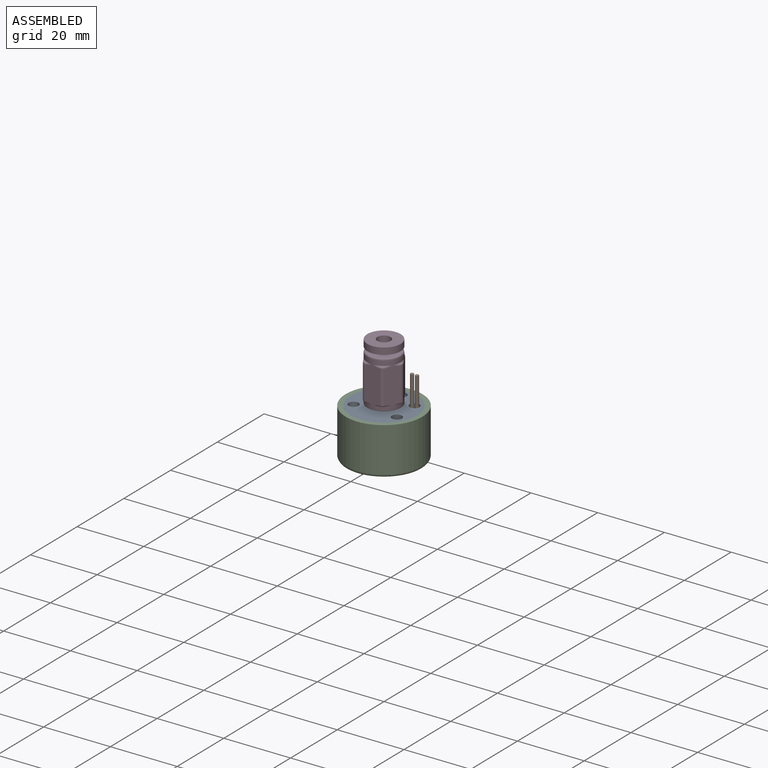
[diagram: assembled view]
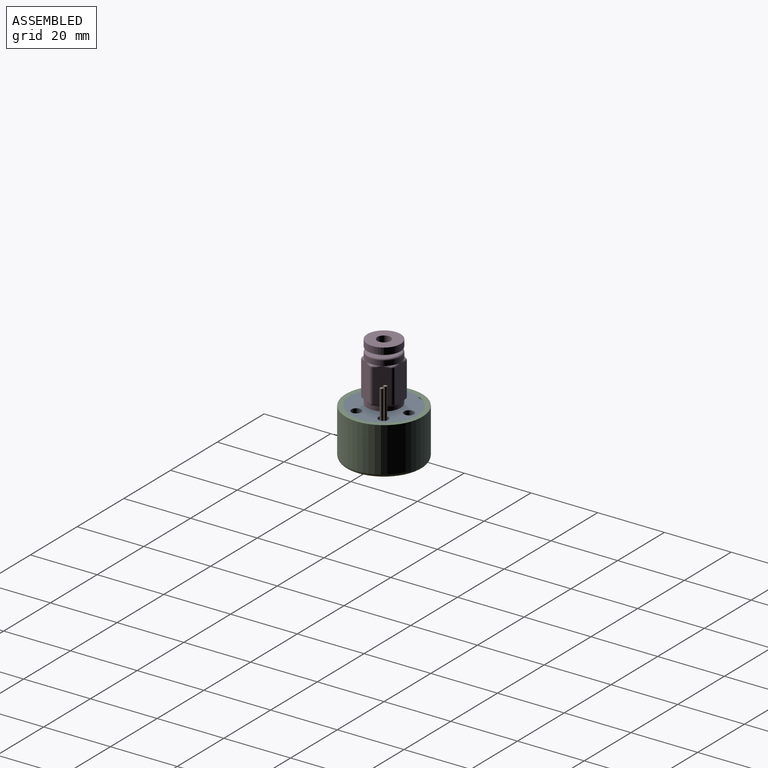
[diagram: assembled view, second angle]
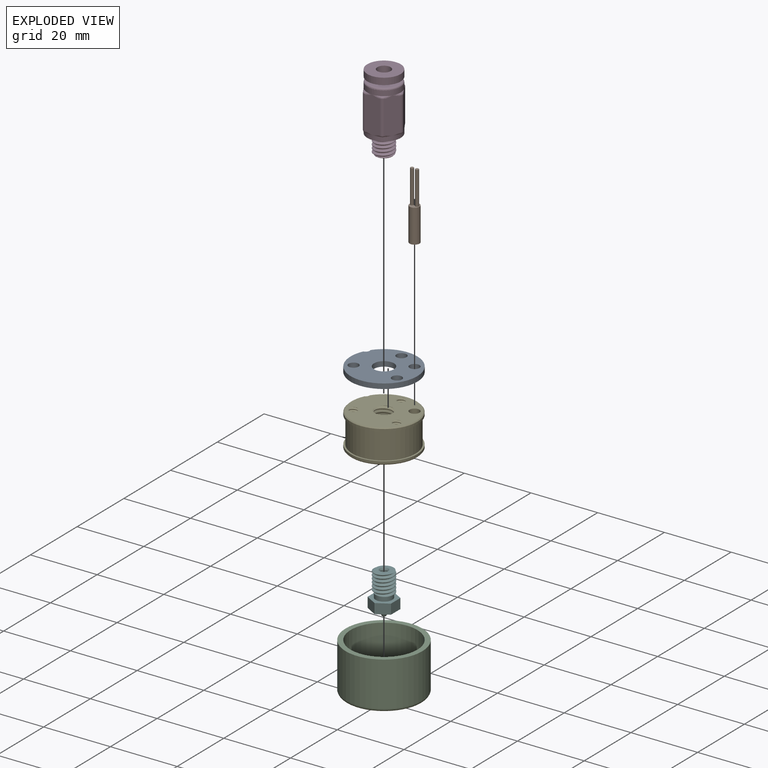
[diagram: exploded view]
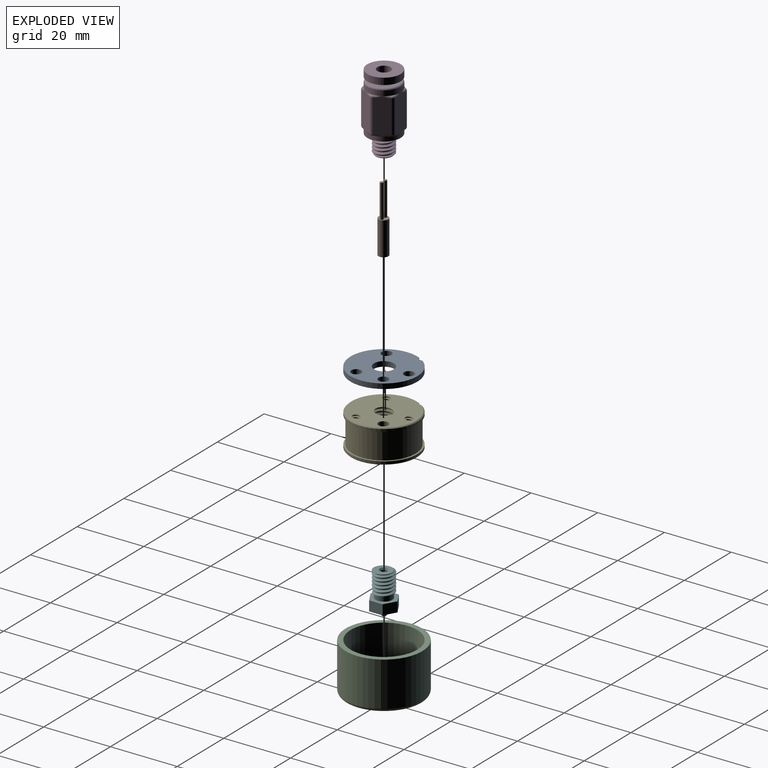
[diagram: exploded view, second angle]
ASSEMBLY  parts=6 mates=5
PART A: 9 faces, bbox 20x20x1.5 mm
  f0: cylinder r=1.25mm len=1.67mm, axis (0,0,-1), area 3.3mm2, adj f6,f7,f8
  f1: cylinder r=3mm len=6mm, axis (0,0,-1), area 28.3mm2, adj f7,f8
  f2: cylinder r=1.5mm len=3mm, axis (0,0,-1), area 14.1mm2, adj f7,f8
  f3: cylinder r=1.5mm len=3mm, axis (0,0,-1), area 14.1mm2, adj f7,f8
  f4: cylinder r=1.5mm len=3mm, axis (0,0,-1), area 14.1mm2, adj f7,f8
  f5: cylinder r=1.5mm len=3mm, axis (0,0,-1), area 14.1mm2, adj f7,f8
  f6: cylinder r=10mm len=20mm, axis (0,0,-1), area 91.4mm2, adj f0,f7,f8
  f7: plane 20x20mm, normal (0,0,1), area 256.9mm2, adj f0,f1,f2,f3,f4,f5,f6
  f8: plane 20x20mm, normal (0,0,-1), area 256.9mm2, adj f0,f1,f2,f3,f4,f5,f6
PART B: 7 faces, bbox 3x3x20 mm
  f0: cylinder r=1.5mm len=10mm, axis (0,0,-1), area 94.2mm2, adj f1,f2
  f1: plane 3x3mm, normal (0,0,1), area 5.5mm2, adj f0,f3,f5
  f2: plane 3x3mm, normal (0,0,-1), area 7.1mm2, adj f0
  f3: cylinder r=0.5mm len=10mm, axis (0,0,-1), area 31.4mm2, adj f1,f4
  f4: plane 1x1mm, normal (0,0,1), area 0.8mm2, adj f3
  f5: cylinder r=0.5mm len=10mm, axis (0,0,-1), area 31.4mm2, adj f1,f6
  f6: plane 1x1mm, normal (0,0,1), area 0.8mm2, adj f5
PART C: 7 faces, bbox 24.9x24.9x16 mm
  f0: plane 23x23mm, normal (0,0,1), area 101.3mm2, adj f1,f5
  f1: cylinder r=11.5mm len=23mm, axis (0,0,1), area 961mm2, adj f0,f6
  f2: cone r=11.5mm half-angle=70deg, axis (0,0,1), area 272.6mm2, adj f3,f6
  f3: cylinder r=6mm len=12mm, axis (0,0,1), area 169.6mm2, adj f2,f4
  f4: plane 20x20mm, normal (0,0,1), area 201.1mm2, adj f3,f5
  f5: cylinder r=10mm len=20mm, axis (0,0,1), area 722.6mm2, adj f0,f4
  f6: torus R=10.5mm, axis (0,0,-1), area 86.5mm2, adj f1,f2
PART D: 110 faces, bbox 11.8x11.2x23.8 mm
  f0: plane 5.5x5.5mm, normal (0,0,1), area 4.1mm2, adj f1,f109
  f1: cylinder r=2.75mm len=5.5mm, axis (0,0,-1), area 34.6mm2, adj f0,f2
  f2: plane 9x9mm, normal (0,0,1), area 39.9mm2, adj f1,f3
  f3: torus R=4.5mm, axis (0,0,1), area 23.8mm2, adj f2,f4
  f4: cylinder r=5mm len=10mm, axis (0,0,-1), area 47.1mm2, adj f3,f5,f90,f91,f92,f93,f94,f95
  f5: plane 0.73x0.13mm, normal (0,0,1), area 0.1mm2, adj f4,f6,f88,f89
  f6: cylinder r=0.5mm len=0.5mm, axis (-0.5,0.87,0), area 0.1mm2, adj f5,f7,f88,f108
  f7: plane 11.38x4.38mm, normal (-0.87,-0.5,0), area 47.9mm2, adj f6,f8,f81,f82,f83,f84,f85,f86
  f8: cylinder r=0.5mm len=0.5mm, axis (-0.5,0.87,0), area 0.1mm2, adj f7,f9,f106,f107
  f9: torus R=0.5mm, axis (0,0,1), area 0.7mm2, adj f8,f10,f81,f106
  f10: cylinder r=0.5mm len=0.5mm, axis (-1,0,0), area 0.1mm2, adj f9,f11,f105,f106
  f11: plane 11x4.62mm, normal (0,-1,0), area 47.9mm2, adj f10,f12,f76,f77,f78,f79,f80,f81
  f12: cylinder r=0.5mm len=0.5mm, axis (-1,0,0), area 0.1mm2, adj f11,f13,f103,f104
  f13: torus R=0.5mm, axis (0,0,1), area 0.7mm2, adj f12,f14,f76,f103
  f14: cylinder r=0.5mm len=0.5mm, axis (-0.5,-0.87,0), area 0.1mm2, adj f13,f15,f101,f103
  f15: plane 11.38x4.38mm, normal (0.87,-0.5,0), area 47.9mm2, adj f14,f16,f70,f71,f72,f73,f74,f75
  f16: bspline ~1.69x1.45mm, area 0.3mm2, adj f15,f17,f71
  f17: cylinder r=5mm len=10mm, axis (0,0,1), area 40.8mm2, adj f16,f18,f42,f43,f44,f45,f46,f47
  f18: plane 0.73x0.13mm, normal (0,0,-1), area 0.1mm2, adj f17,f19,f20,f74
  f19: torus R=0.5mm, axis (0,0,1), area 0.7mm2, adj f18,f20,f73,f74
  f20: cylinder r=0.5mm len=0.5mm, axis (-0.5,0.87,0), area 0.1mm2, adj f18,f19,f21,f43
  f21: plane 11.38x4.38mm, normal (0.87,0.5,0), area 47.9mm2, adj f20,f22,f24,f40,f41,f42,f43,f44
  f22: cylinder r=0.5mm len=0.5mm, axis (0.5,-0.87,0), area 0.1mm2, adj f21,f23,f98,f99
  f23: torus R=0.5mm, axis (0,0,1), area 0.7mm2, adj f22,f72,f73,f99
  f24: cylinder r=0.5mm len=0.5mm, axis (0.5,-0.87,0), area 0.1mm2, adj f21,f25,f96,f97
  f25: torus R=0.5mm, axis (0,0,1), area 0.7mm2, adj f24,f26,f40,f96
  f26: cylinder r=0.5mm len=0.5mm, axis (1,0,0), area 0.1mm2, adj f25,f27,f95,f96
  f27: plane 11x4.62mm, normal (0,1,0), area 47.9mm2, adj f26,f28,f30,f38,f39,f40,f46,f47
  f28: cylinder r=0.5mm len=0.5mm, axis (-1,0,0), area 0.1mm2, adj f27,f29,f45,f46
  f29: torus R=0.5mm, axis (0,0,1), area 0.7mm2, adj f28,f40,f41,f45
  f30: cylinder r=0.5mm len=0.5mm, axis (1,0,0), area 0.1mm2, adj f27,f31,f93,f94
  f31: torus R=0.5mm, axis (0,0,1), area 0.7mm2, adj f30,f32,f38,f93
  f32: cylinder r=0.5mm len=0.5mm, axis (0.5,0.87,0), area 0.1mm2, adj f31,f33,f91,f93
  f33: plane 11.38x4.38mm, normal (-0.87,0.5,0), area 47.9mm2, adj f32,f34,f36,f38,f49,f50,f51,f87
  f34: cylinder r=0.5mm len=0.5mm, axis (-0.5,-0.87,0), area 0.1mm2, adj f33,f35,f51,f52
  f35: torus R=0.5mm, axis (0,0,1), area 0.7mm2, adj f34,f52,f86,f87
  f36: cylinder r=0.5mm len=0.5mm, axis (-0.5,-0.87,0), area 0.1mm2, adj f33,f37,f48,f50
  f37: torus R=0.5mm, axis (0,0,1), area 0.7mm2, adj f36,f38,f39,f48
  f38: cylinder r=1mm len=10mm, axis (0,0,-1), area 10.5mm2, adj f27,f31,f33,f37
  f39: cylinder r=0.5mm len=0.5mm, axis (-1,0,0), area 0.1mm2, adj f27,f37,f47,f48
  f40: cylinder r=1mm len=10mm, axis (0,0,-1), area 10.5mm2, adj f21,f25,f27,f29
  f41: cylinder r=0.5mm len=0.5mm, axis (-0.5,0.87,0), area 0.1mm2, adj f21,f29,f44,f45
  f42: bspline ~1.34x0.7mm, area 0.1mm2, adj f17,f21
  f43: bspline ~1.94x0.97mm, area 0.3mm2, adj f17,f20,f21
  f44: bspline ~2.07x1.68mm, area 0.5mm2, adj f17,f21,f41
  f45: plane 0.63x0.36mm, normal (0,0,-1), area 0.1mm2, adj f17,f28,f29,f41
  f46: bspline ~2.23x0.53mm, area 0.5mm2, adj f17,f27,f28
  f47: bspline ~2.39x0.59mm, area 0.5mm2, adj f17,f27,f39
  f48: plane 0.63x0.36mm, normal (0,0,-1), area 0.1mm2, adj f17,f36,f37,f39
  f49: bspline ~1.21x0.9mm, area 0.1mm2, adj f17,f33
  f50: bspline ~1.69x1.45mm, area 0.3mm2, adj f17,f33,f36
  f51: bspline ~2.32x1.2mm, area 0.5mm2, adj f17,f33,f34
  f52: plane 0.73x0.13mm, normal (0,0,-1), area 0.1mm2, adj f17,f34,f35,f86
  f53: plane 0.63x0.36mm, normal (0,0,-1), area 0.1mm2, adj f17,f54,f80,f82
  f54: torus R=0.5mm, axis (0,0,1), area 0.7mm2, adj f53,f80,f81,f82
  f55: plane 0.63x0.36mm, normal (0,0,-1), area 0.1mm2, adj f17,f56,f71,f77
  f56: torus R=0.5mm, axis (0,0,1), area 0.7mm2, adj f55,f71,f76,f77
  f57: plane 10x10mm, normal (0,0,-1), area 21.8mm2, adj f17,f58
  f58: cylinder r=4.25mm len=8.5mm, axis (0,0,1), area 34.7mm2, adj f57,f59
  f59: plane 8.78x8.78mm, normal (0,0,-1), area 33.9mm2, adj f58,f60,f67,f68,f69
  f60: bspline ~7.81x6.93mm, area 72.6mm2, adj f59,f61,f66,f67,f69
  f61: plane 5.03x4.95mm, normal (0,0,-1), area 6.7mm2, adj f60,f62,f66,f67,f68
  f62: cylinder r=2mm len=23mm, axis (0,0,-1), area 289mm2, adj f61,f63
  f63: plane 10x10mm, normal (0,0,1), area 66mm2, adj f62,f64
  f64: cylinder r=5mm len=10mm, axis (0,0,-1), area 62.8mm2, adj f63,f65
  f65: plane 10x10mm, normal (0,0,-1), area 58.9mm2, adj f64,f109
  f66: cone r=2.5mm half-angle=45deg, axis (0,0,1), area 4.9mm2, adj f60,f61,f68,f69
  f67: bspline ~7.75x5.68mm, area 29.9mm2, adj f59,f60,f61,f68
  f68: bspline ~7.48x6.93mm, area 72.5mm2, adj f59,f61,f66,f67,f69
  f69: cylinder r=3mm len=6.5mm, axis (0,0,1), area 21.2mm2, adj f59,f60,f66,f68
  f70: bspline ~1.21x0.9mm, area 0.1mm2, adj f15,f17
  f71: cylinder r=0.5mm len=0.5mm, axis (0.5,0.87,0), area 0.1mm2, adj f15,f16,f55,f56
  f72: cylinder r=0.5mm len=0.5mm, axis (-0.5,-0.87,0), area 0.1mm2, adj f15,f23,f99,f100
  f73: cylinder r=1mm len=10mm, axis (0,0,-1), area 10.5mm2, adj f15,f19,f21,f23
  f74: cylinder r=0.5mm len=0.5mm, axis (0.5,0.87,0), area 0.1mm2, adj f15,f18,f19,f75
  f75: bspline ~2.32x1.2mm, area 0.5mm2, adj f15,f17,f74
  f76: cylinder r=1mm len=10mm, axis (0,0,-1), area 10.5mm2, adj f11,f13,f15,f56
  f77: cylinder r=0.5mm len=0.5mm, axis (1,0,0), area 0.1mm2, adj f11,f55,f56,f78
  f78: bspline ~2.39x0.59mm, area 0.5mm2, adj f11,f17,f77
  f79: bspline ~2.23x0.53mm, area 0.5mm2, adj f11,f17,f80
  f80: cylinder r=0.5mm len=0.5mm, axis (1,0,0), area 0.1mm2, adj f11,f53,f54,f79
  f81: cylinder r=1mm len=10mm, axis (0,0,-1), area 10.5mm2, adj f7,f9,f11,f54
  f82: cylinder r=0.5mm len=0.5mm, axis (0.5,-0.87,0), area 0.1mm2, adj f7,f53,f54,f83
  f83: bspline ~2.07x1.68mm, area 0.5mm2, adj f7,f17,f82
  f84: bspline ~1.94x0.97mm, area 0.3mm2, adj f7,f17,f86
  f85: bspline ~1.34x0.7mm, area 0.1mm2, adj f7,f17
  f86: cylinder r=0.5mm len=0.5mm, axis (0.5,-0.87,0), area 0.1mm2, adj f7,f35,f52,f84
  f87: cylinder r=1mm len=10mm, axis (0,0,-1), area 10.5mm2, adj f7,f33,f35,f88
  f88: torus R=0.5mm, axis (0,0,1), area 0.7mm2, adj f5,f6,f87,f89
  f89: cylinder r=0.5mm len=0.5mm, axis (0.5,0.87,0), area 0.1mm2, adj f5,f33,f88,f90
  f90: bspline ~2.32x1.2mm, area 0.5mm2, adj f4,f33,f89
  f91: bspline ~1.69x1.45mm, area 0.3mm2, adj f4,f32,f33
  f92: bspline ~1.21x0.9mm, area 0.1mm2, adj f4,f33
  f93: plane 0.63x0.36mm, normal (0,0,1), area 0.1mm2, adj f4,f30,f31,f32
  f94: bspline ~2.23x0.53mm, area 0.5mm2, adj f4,f27,f30
  f95: bspline ~2.39x0.59mm, area 0.5mm2, adj f4,f26,f27
  f96: plane 0.63x0.36mm, normal (0,0,1), area 0.1mm2, adj f4,f24,f25,f26
  f97: bspline ~2.07x1.68mm, area 0.5mm2, adj f4,f21,f24
  f98: bspline ~2.14x1.09mm, area 0.8mm2, adj f4,f21,f22
  f99: plane 0.73x0.13mm, normal (0,0,1), area 0.1mm2, adj f4,f22,f23,f72
  f100: bspline ~2.32x1.2mm, area 0.5mm2, adj f4,f15,f72
  f101: bspline ~1.69x1.45mm, area 0.3mm2, adj f4,f14,f15
  f102: bspline ~1.21x0.9mm, area 0.1mm2, adj f4,f15
  f103: plane 0.63x0.36mm, normal (0,0,1), area 0.1mm2, adj f4,f12,f13,f14
  f104: bspline ~2.23x0.53mm, area 0.5mm2, adj f4,f11,f12
  f105: bspline ~2.39x0.59mm, area 0.5mm2, adj f4,f10,f11
  f106: plane 0.63x0.36mm, normal (0,0,1), area 0.1mm2, adj f4,f8,f9,f10
  f107: bspline ~2.07x1.68mm, area 0.5mm2, adj f4,f7,f8
  f108: bspline ~2.14x1.09mm, area 0.8mm2, adj f4,f6,f7
  f109: cylinder r=2.5mm len=5mm, axis (0,0,-1), area 47.1mm2, adj f0,f65
PART E: 28 faces, bbox 20.3x20.3x11.1 mm
  f0: plane 19.79x19.79mm, normal (0,0,-1), area 251.1mm2, adj f3,f9,f11,f12,f13,f14,f15,f16
  f1: plane 19.79x19.79mm, normal (0,0,1), area 251.1mm2, adj f2,f9,f10,f12,f13,f14,f15,f16
  f2: cylinder r=1.25mm len=1.67mm, axis (0,0,1), area 2.1mm2, adj f1,f5,f6,f10
  f3: cylinder r=1.25mm len=1.67mm, axis (0,0,1), area 2.1mm2, adj f0,f4,f7,f11
  f4: cylinder r=10mm len=20mm, axis (0,0,1), area 45.7mm2, adj f3,f7,f11
  f5: cylinder r=10mm len=20mm, axis (0,0,1), area 45.7mm2, adj f2,f6,f10
  f6: plane 20x20mm, normal (0,0,-1), area 30mm2, adj f2,f5,f8
  f7: plane 20x20mm, normal (0,0,1), area 30mm2, adj f3,f4,f8
  f8: cylinder r=9.5mm len=19mm, axis (0,0,-1), area 477.5mm2, adj f6,f7
  f9: cylinder r=1.5mm len=10mm, axis (0,0,1), area 94.2mm2, adj f0,f1
  f10: cone r=9.75mm half-angle=45deg, axis (0,0,-1), area 21.3mm2, adj f1,f2,f5
  f11: cone r=10mm half-angle=45deg, axis (0,0,1), area 21.3mm2, adj f0,f3,f4
  f12: bspline ~10.65x7.02mm, area 108.7mm2, adj f0,f1,f14,f15
  f13: bspline ~10.81x7.02mm, area 109mm2, adj f0,f1,f14,f15
  f14: bspline ~10.46x7.13mm, area 27.9mm2, adj f0,f1,f12,f13
  f15: cylinder r=2.5mm len=10mm, axis (0,0,-1), area 42.5mm2, adj f0,f1,f12,f13
  f16: bspline ~10.49x3.53mm, area 52.7mm2, adj f0,f1,f18,f19
  f17: bspline ~10.6x3.53mm, area 52.8mm2, adj f0,f1,f18,f19
  f18: bspline ~10.24x3.6mm, area 14mm2, adj f0,f1,f16,f17
  f19: cylinder r=1.15mm len=10mm, axis (0,0,-1), area 20.2mm2, adj f0,f1,f16,f17
  f20: bspline ~10.49x3.53mm, area 52.7mm2, adj f0,f1,f22,f23
  f21: bspline ~10.6x3.53mm, area 52.8mm2, adj f0,f1,f22,f23
  f22: bspline ~10.24x3.6mm, area 14mm2, adj f0,f1,f20,f21
  f23: cylinder r=1.15mm len=10mm, axis (0,0,-1), area 20.2mm2, adj f0,f1,f20,f21
  f24: bspline ~10.49x3.53mm, area 52.7mm2, adj f0,f1,f26,f27
  f25: bspline ~10.6x3.53mm, area 52.8mm2, adj f0,f1,f26,f27
  f26: bspline ~10.24x3.6mm, area 14mm2, adj f0,f1,f24,f25
  f27: cylinder r=1.15mm len=10mm, axis (0,0,-1), area 20.2mm2, adj f0,f1,f24,f25
PART F: 23 faces, bbox 7.3x8.4x13.2 mm
  f0: plane 5.69x5.66mm, normal (0,0,1), area 17.5mm2, adj f1,f2,f20,f21,f22
  f1: cylinder r=3mm len=6mm, axis (0,0,1), area 14.5mm2, adj f0,f3,f21,f22
  f2: cone r=1mm half-angle=30deg, axis (0,0,1), area 4.3mm2, adj f0,f11
  f3: plane 5.63x5.38mm, normal (0,0,-1), area 3.5mm2, adj f1,f4,f21,f22
  f4: cylinder r=2.5mm len=5mm, axis (0,0,1), area 23.6mm2, adj f3,f5,f19
  f5: plane 8.08x7mm, normal (0,0,1), area 22.8mm2, adj f4,f12,f13,f14,f15,f16,f17
  f6: plane 8.08x7mm, normal (0,0,-1), area 33.8mm2, adj f7,f12,f13,f14,f15,f16,f17
  f7: cone r=1.65mm half-angle=30deg, axis (0,0,1), area 15.2mm2, adj f6,f18
  f8: plane 0.77x0.77mm, normal (0,0,-1), area 0.3mm2, adj f9,f18
  f9: cylinder r=0.2mm len=0.6mm, axis (0,0,1), area 0.8mm2, adj f8,f10
  f10: cone r=0.2mm half-angle=30deg, axis (0,0,1), area 6mm2, adj f9,f11
  f11: cylinder r=1mm len=9.99mm, axis (0,0,1), area 62.8mm2, adj f2,f10
  f12: plane 3.5x3mm, normal (0.5,0.87,0), area 12.1mm2, adj f5,f6,f13,f15
  f13: plane 3.5x3mm, normal (-0.5,0.87,0), area 12.1mm2, adj f5,f6,f12,f14
  f14: plane 4.04x3mm, normal (-1,0,0), area 12.1mm2, adj f5,f6,f13,f16
  f15: plane 4.04x3mm, normal (1,0,0), area 12.1mm2, adj f5,f6,f12,f17
  f16: plane 3.5x3mm, normal (-0.5,-0.87,0), area 12.1mm2, adj f5,f6,f14,f17
  f17: plane 3.5x3mm, normal (0.5,-0.87,0), area 12.1mm2, adj f5,f6,f15,f16
  f18: torus R=0.38mm, axis (0,0,-1), area 0.6mm2, adj f7,f8
  f19: plane 3.75x1.95mm, normal (0,0,1), area 0.3mm2, adj f4,f20,f21,f22
  f20: bspline ~6.75x5.68mm, area 25.6mm2, adj f0,f19,f21,f22
  f21: bspline ~6.93x6.81mm, area 64.4mm2, adj f0,f1,f3,f19,f20
  f22: bspline ~6.93x6.65mm, area 64.4mm2, adj f0,f1,f3,f19,f20
PLACE A at identity
PLACE B t=(6.22,4.19,-10)mm
PLACE C at identity
PLACE D t=(0,0,3.5)mm
PLACE E at identity fixed
PLACE F t=(0,0,3.6)mm
MATE fastened A.f6 <-> E.f4  axis (0,0,-1) through (0,0,0)mm
MATE fastened B.f0 <-> E.f9  axis (0,0,-1) through (6.22,4.19,-10)mm
MATE fastened C.f1 <-> A.f6  axis (0,0,1) through (0,0,1.5)mm
MATE fastened E.f4 <-> F.f18  axis (0,0,-1) through (0,0,-10)mm
MATE fastened F.f18 <-> D.f1  axis (0,0,1) through (0,0,-3.5)mm
